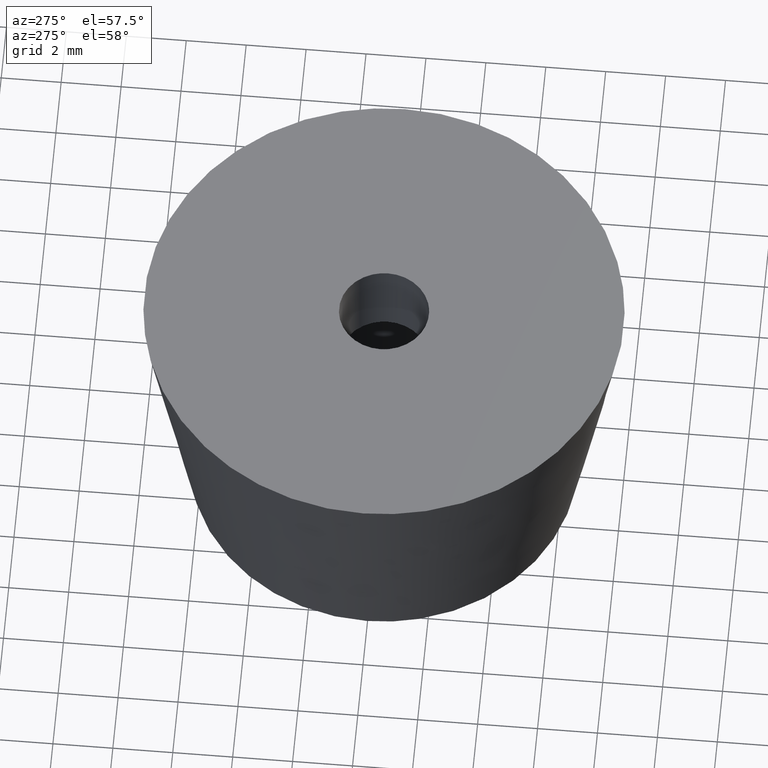
[diagram: clean part render]
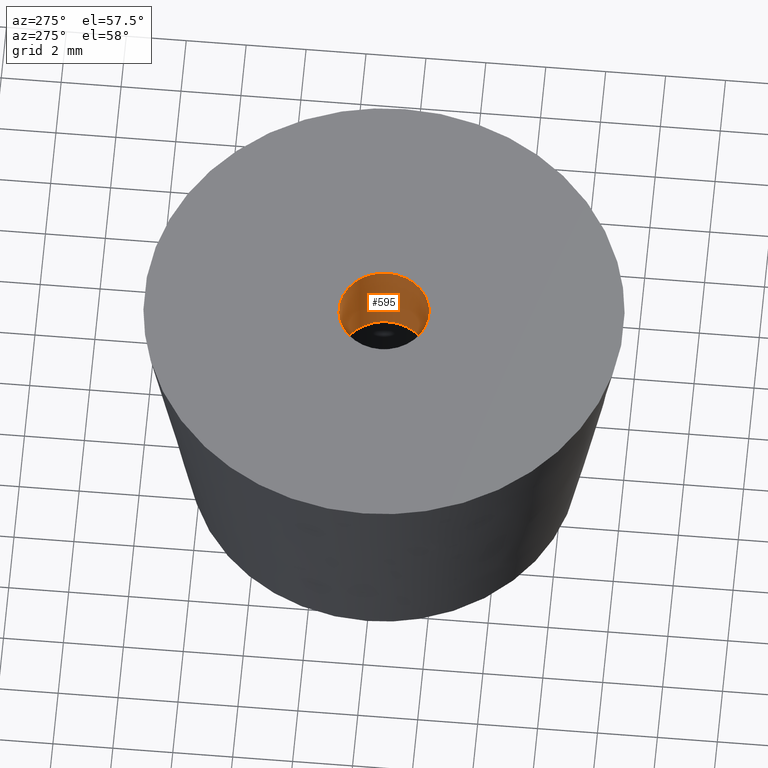
[diagram: same view with one face highlighted and labeled with its STEP entity id]
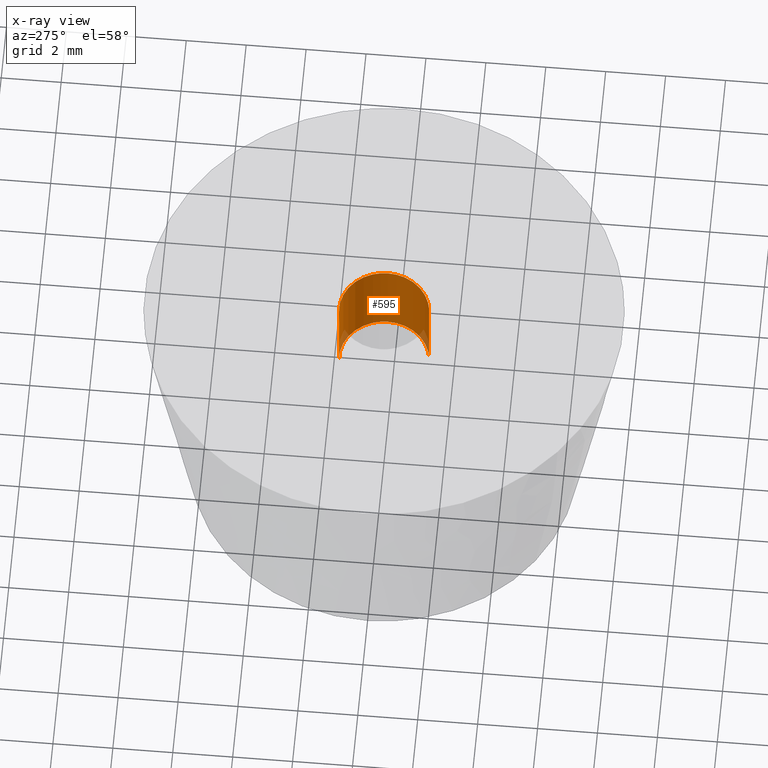
[diagram: x-ray of the same camera — body ghosted, the highlighted face saturated]
A machine part, auxiliary view. The second image highlights one B-rep face of the part: STEP entity #595.
The next image is the same camera in x-ray: the body ghosted, the highlighted face saturated — about 4% of this face is hidden behind the body in this view.
In plain terms, the highlighted face is a freeform B-spline surface patch.
Its self-contained STEP definition (entity closure, byte-faithful):
#493=CARTESIAN_POINT('',(-0.177051351985138,1.489514289545500,9.075000000000005));
#494=CARTESIAN_POINT('',(-0.134422092956966,1.494581423172908,9.075000000000003));
#495=CARTESIAN_POINT('',(-0.091572809302285,1.497202197632800,9.075000000000001));
#496=CARTESIAN_POINT('',(1.405629388330515,1.588775006935085,9.075000000000001));
#497=CARTESIAN_POINT('',(1.497202197632800,0.091572809302285,9.075000000000001));
#498=CARTESIAN_POINT('',(1.588775006935085,-1.405629388330515,9.075000000000001));
#499=CARTESIAN_POINT('',(0.091572809302285,-1.497202197632800,9.075000000000001));
#500=CARTESIAN_POINT('',(-0.177051351985138,1.489514289545500,5.923125000000000));
#501=CARTESIAN_POINT('',(-0.134422092956966,1.494581423172908,5.923124999999999));
#502=CARTESIAN_POINT('',(-0.091572809302285,1.497202197632800,5.923124999999999));
#503=CARTESIAN_POINT('',(1.405629388330515,1.588775006935085,5.923124999999998));
#504=CARTESIAN_POINT('',(1.497202197632800,0.091572809302285,5.923124999999999));
#505=CARTESIAN_POINT('',(1.588775006935085,-1.405629388330515,5.923124999999998));
#506=CARTESIAN_POINT('',(0.091572809302285,-1.497202197632800,5.923124999999999));
#514=(BOUNDED_SURFACE()B_SPLINE_SURFACE(2,1,((#493,#500),(#494,#501),(#495,#502),(#496,#503),(#497,#504),(#498,#505),(#499,#506)),.UNSPECIFIED.,.F.,.F.,.U.)B_SPLINE_SURFACE_WITH_KNOTS((3,2,2,3),(2,2),(3.078760800517997,3.141592653589793,4.712388980384690,6.283185307179586),(0.0,3.151875000000004),.UNSPECIFIED.)GEOMETRIC_REPRESENTATION_ITEM()RATIONAL_B_SPLINE_SURFACE(((0.977505800795127,0.977505800795127),(0.988284271247462,0.988284271247462),(1.0,1.0),(0.707106781186548,0.707106781186548),(1.0,1.0),(0.707106781186548,0.707106781186548),(1.0,1.0)))REPRESENTATION_ITEM('')SURFACE());
#515=CARTESIAN_POINT('',(-0.177051351996448,1.489514289544155,6.0));
#516=VERTEX_POINT('',#515);
#517=CARTESIAN_POINT('',(1.500000000000000,0.0,6.0));
#518=VERTEX_POINT('',#517);
#519=CARTESIAN_POINT('',(-0.177051351996448,1.489514289544155,5.999999999999999));
#520=CARTESIAN_POINT('',(-0.088836179489295,1.500000000000000,5.999999999999999));
#521=CARTESIAN_POINT('',(0.0,1.500000000000000,6.0));
#522=CARTESIAN_POINT('',(1.500000000000000,1.500000000000000,6.0));
#523=CARTESIAN_POINT('',(1.500000000000000,0.0,6.0));
#531=(BOUNDED_CURVE()B_SPLINE_CURVE(2,(#519,#520,#521,#522,#523),.UNSPECIFIED.,.F.,.U.)B_SPLINE_CURVE_WITH_KNOTS((3,2,3),(0.229562473513078,0.250000000000000,0.500000000000000),.UNSPECIFIED.)CURVE()GEOMETRIC_REPRESENTATION_ITEM()RATIONAL_B_SPLINE_CURVE((0.956026754182855,0.976055948330640,1.0,0.707106781186548,1.0))REPRESENTATION_ITEM(''));
#532=EDGE_CURVE('',#516,#518,#531,.T.);
#533=ORIENTED_EDGE('',*,*,#532,.T.);
#534=CARTESIAN_POINT('',(0.091572809311081,-1.497202197632262,6.000000000000001));
#535=VERTEX_POINT('',#534);
#536=CARTESIAN_POINT('',(1.500000000000000,0.0,6.0));
#537=CARTESIAN_POINT('',(1.500000000000001,-1.411059100341942,6.000000000000001));
#538=CARTESIAN_POINT('',(0.091572809311081,-1.497202197632263,6.000000000000001));
#546=(BOUNDED_CURVE()B_SPLINE_CURVE(2,(#536,#537,#538),.UNSPECIFIED.,.F.,.U.)B_SPLINE_CURVE_WITH_KNOTS((3,3),(0.500000000000000,0.739332962239942),.UNSPECIFIED.)CURVE()GEOMETRIC_REPRESENTATION_ITEM()RATIONAL_B_SPLINE_CURVE((1.0,0.719603993285540,0.976072041668859))REPRESENTATION_ITEM(''));
#547=EDGE_CURVE('',#518,#535,#546,.T.);
#548=ORIENTED_EDGE('',*,*,#547,.T.);
#549=CARTESIAN_POINT('',(0.091572809311081,-1.497202197632262,9.0));
#550=VERTEX_POINT('',#549);
#551=CARTESIAN_POINT('',(0.091572809311081,-1.497202197632262,9.0));
#552=CARTESIAN_POINT('',(0.091572809311081,-1.497202197632262,6.000000000000001));
#553=QUASI_UNIFORM_CURVE('',1,(#551,#552),.UNSPECIFIED.,.F.,.U.);
#554=EDGE_CURVE('',#550,#535,#553,.T.);
#555=ORIENTED_EDGE('',*,*,#554,.F.);
#556=CARTESIAN_POINT('',(1.500000000000000,0.0,9.0));
#557=VERTEX_POINT('',#556);
#558=CARTESIAN_POINT('',(1.500000000000000,0.0,9.0));
#559=CARTESIAN_POINT('',(1.500000000000001,-1.411059100341942,9.000000000000002));
#560=CARTESIAN_POINT('',(0.091572809311081,-1.497202197632263,9.0));
#568=(BOUNDED_CURVE()B_SPLINE_CURVE(2,(#558,#559,#560),.UNSPECIFIED.,.F.,.U.)B_SPLINE_CURVE_WITH_KNOTS((3,3),(0.500000000000000,0.739332962239942),.UNSPECIFIED.)CURVE()GEOMETRIC_REPRESENTATION_ITEM()RATIONAL_B_SPLINE_CURVE((1.0,0.719603993285540,0.976072041668859))REPRESENTATION_ITEM(''));
#569=EDGE_CURVE('',#557,#550,#568,.T.);
#570=ORIENTED_EDGE('',*,*,#569,.F.);
#571=CARTESIAN_POINT('',(-0.177051351996448,1.489514289544155,9.0));
#572=VERTEX_POINT('',#571);
#573=CARTESIAN_POINT('',(-0.177051351996448,1.489514289544155,9.0));
#574=CARTESIAN_POINT('',(-0.088836179489295,1.500000000000000,9.0));
#575=CARTESIAN_POINT('',(0.0,1.500000000000000,9.0));
#576=CARTESIAN_POINT('',(1.500000000000000,1.500000000000000,9.000000000000002));
#577=CARTESIAN_POINT('',(1.500000000000000,0.0,9.0));
#585=(BOUNDED_CURVE()B_SPLINE_CURVE(2,(#573,#574,#575,#576,#577),.UNSPECIFIED.,.F.,.U.)B_SPLINE_CURVE_WITH_KNOTS((3,2,3),(0.229562473513078,0.250000000000000,0.500000000000000),.UNSPECIFIED.)CURVE()GEOMETRIC_REPRESENTATION_ITEM()RATIONAL_B_SPLINE_CURVE((0.956026754182855,0.976055948330640,1.0,0.707106781186548,1.0))REPRESENTATION_ITEM(''));
#586=EDGE_CURVE('',#572,#557,#585,.T.);
#587=ORIENTED_EDGE('',*,*,#586,.F.);
#588=CARTESIAN_POINT('',(-0.177051351996448,1.489514289544155,9.0));
#589=CARTESIAN_POINT('',(-0.177051351996448,1.489514289544155,6.0));
#590=QUASI_UNIFORM_CURVE('',1,(#588,#589),.UNSPECIFIED.,.F.,.U.);
#591=EDGE_CURVE('',#572,#516,#590,.T.);
#592=ORIENTED_EDGE('',*,*,#591,.T.);
#593=EDGE_LOOP('',(#533,#548,#555,#570,#587,#592));
#594=FACE_OUTER_BOUND('',#593,.T.);
#595=ADVANCED_FACE('',(#594),#514,.F.);